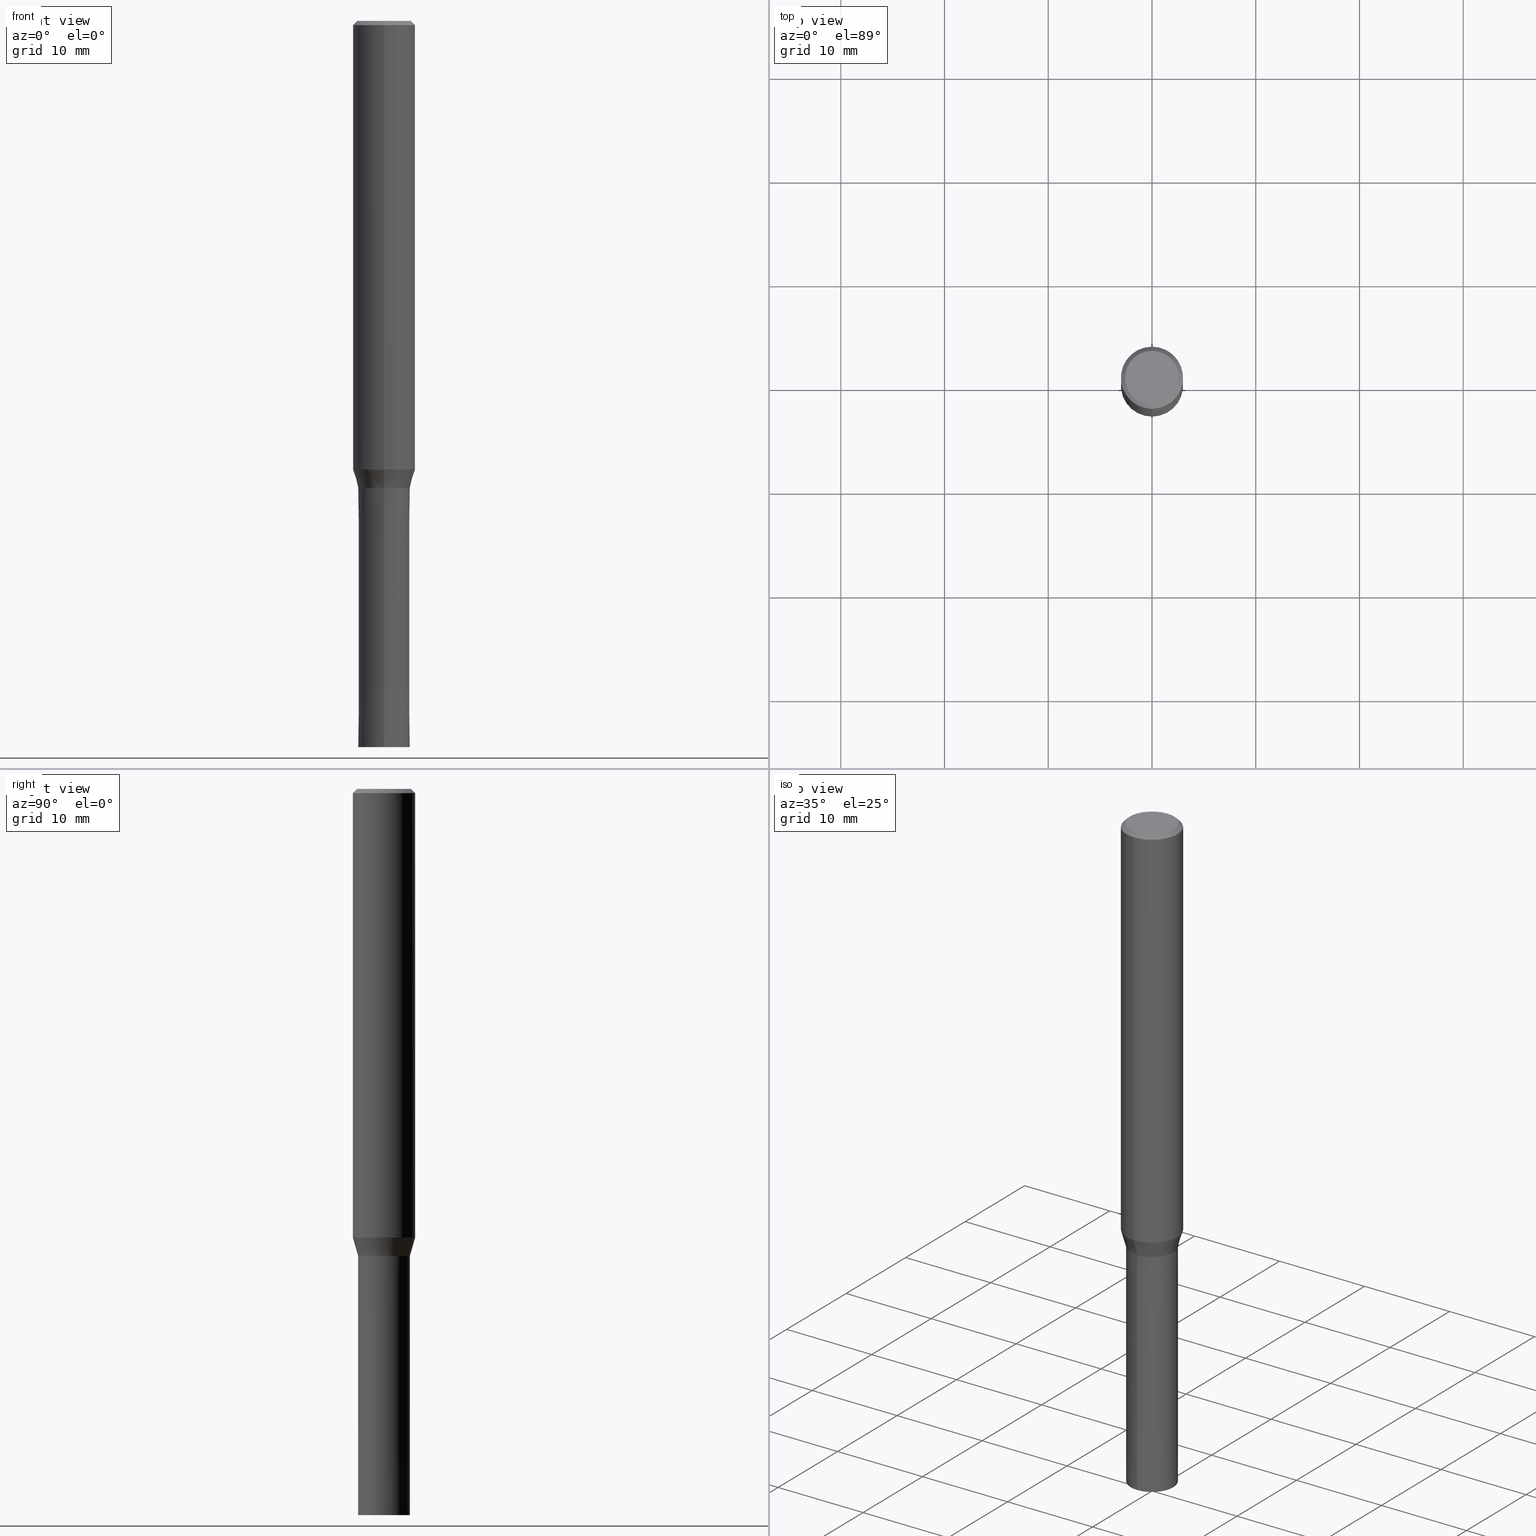
[diagram: canonical four-view strip — front | top / right | iso, engineering-drawing reading convention]
A machine part, canonical four-view strip (front | top / right | iso — engineering-drawing reading convention). The complete STEP part file that produces these views, byte-faithful:
ISO-10303-21;
HEADER;
FILE_DESCRIPTION(('no description'),'unknown implementation level');
FILE_NAME('HMS4050-2500-Huellk.stp','  ',('CIMSOURCE GmbH'),('CADClick - KiM GmbH - www.kimweb.de'),'unknown preprocess','ACIS','unknown authorization');
FILE_SCHEMA(('automotive_design'));
ENDSEC;
DATA;
#1=MECHANICAL_DESIGN_GEOMETRIC_PRESENTATION_REPRESENTATION(' ',(#14,#15,#16,#17,#18,#19,#20,#21,#22,#23,#24,#25,#26,#27,#28,#29,#30,#31,#32,#33,#34,#35,#36,#37,#38,#39,#40,#41,#42,#43,#44,#45,#46,#47,#48,#49,#50,#51,#52,#53,#54,#55,#56,#57,#58,#59,#60,#61,#62,#63,#64),#10);
#2=PRODUCT_DEFINITION_CONTEXT('',#65,'design');
#3=APPLICATION_PROTOCOL_DEFINITION('INTERNATIONAL STANDARD','automotive_design',1994,#65);
#4=PRODUCT_CATEGORY_RELATIONSHIP('NONE','NONE',#66,#67);
#5=SHAPE_DEFINITION_REPRESENTATION(#68,#69);
#6=PRODUCT_DEFINITION_CONTEXT('',#70,'design');
#7=APPLICATION_PROTOCOL_DEFINITION('INTERNATIONAL STANDARD','automotive_design',1994,#70);
#8=PRODUCT_CATEGORY_RELATIONSHIP('NONE','NONE',#71,#72);
#9=SHAPE_DEFINITION_REPRESENTATION(#73,#74);
#10= (GEOMETRIC_REPRESENTATION_CONTEXT(3)GLOBAL_UNCERTAINTY_ASSIGNED_CONTEXT((#77))GLOBAL_UNIT_ASSIGNED_CONTEXT((#79,#80,#81))REPRESENTATION_CONTEXT('NONE','WORKSPACE'));
#14=STYLED_ITEM('',(#83),#84);
#15=STYLED_ITEM('',(#85),#86);
#16=STYLED_ITEM('',(#87),#88);
#17=STYLED_ITEM('',(#89),#90);
#18=STYLED_ITEM('',(#91),#92);
#19=STYLED_ITEM('',(#93),#94);
#20=STYLED_ITEM('',(#95),#96);
#21=STYLED_ITEM('',(#97),#98);
#22=STYLED_ITEM('',(#99),#100);
#23=STYLED_ITEM('',(#101),#102);
#24=STYLED_ITEM('',(#103),#104);
#25=STYLED_ITEM('',(#105),#106);
#26=STYLED_ITEM('',(#107),#108);
#27=STYLED_ITEM('',(#109),#110);
#28=STYLED_ITEM('',(#111),#112);
#29=STYLED_ITEM('',(#113),#114);
#30=STYLED_ITEM('',(#115),#116);
#31=STYLED_ITEM('',(#117),#118);
#32=STYLED_ITEM('',(#119),#120);
#33=STYLED_ITEM('',(#121),#122);
#34=STYLED_ITEM('',(#123),#124);
#35=STYLED_ITEM('',(#125),#126);
#36=STYLED_ITEM('',(#127),#128);
#37=STYLED_ITEM('',(#129),#130);
#38=STYLED_ITEM('',(#131),#132);
#39=STYLED_ITEM('',(#133),#134);
#40=STYLED_ITEM('',(#135),#136);
#41=STYLED_ITEM('',(#137),#138);
#42=STYLED_ITEM('',(#139),#140);
#43=STYLED_ITEM('',(#141),#142);
#44=STYLED_ITEM('',(#143),#144);
#45=STYLED_ITEM('',(#145),#146);
#46=STYLED_ITEM('',(#147),#148);
#47=STYLED_ITEM('',(#149),#150);
#48=STYLED_ITEM('',(#151),#152);
#49=STYLED_ITEM('',(#153),#154);
#50=STYLED_ITEM('',(#155),#156);
#51=STYLED_ITEM('',(#157),#158);
#52=STYLED_ITEM('',(#159),#160);
#53=STYLED_ITEM('',(#161),#162);
#54=STYLED_ITEM('',(#163),#164);
#55=STYLED_ITEM('',(#165),#166);
#56=STYLED_ITEM('',(#167),#168);
#57=STYLED_ITEM('',(#169),#170);
#58=STYLED_ITEM('',(#171),#172);
#59=STYLED_ITEM('',(#173),#174);
#60=STYLED_ITEM('',(#175),#176);
#61=STYLED_ITEM('',(#177),#178);
#62=STYLED_ITEM('',(#179),#180);
#63=STYLED_ITEM('',(#181),#182);
#64=STYLED_ITEM('',(#183),#184);
#65=APPLICATION_CONTEXT(' ');
#66=PRODUCT_CATEGORY('part','NONE');
#67=PRODUCT_RELATED_PRODUCT_CATEGORY('detail',' ',(#185));
#68=PRODUCT_DEFINITION_SHAPE('NONE','NONE',#186);
#69=ADVANCED_BREP_SHAPE_REPRESENTATION('1',(#116,#187),#10);
#70=APPLICATION_CONTEXT(' ');
#71=PRODUCT_CATEGORY('part','NONE');
#72=PRODUCT_RELATED_PRODUCT_CATEGORY('detail',' ',(#188));
#73=PRODUCT_DEFINITION_SHAPE('NONE','NONE',#189);
#74=ADVANCED_BREP_SHAPE_REPRESENTATION('2',(#174,#190),#10);
#77=UNCERTAINTY_MEASURE_WITH_UNIT(LENGTH_MEASURE(1.0E-006),#79,'','');
#79= (CONVERSION_BASED_UNIT('MILLIMETRE',#193)LENGTH_UNIT()NAMED_UNIT(#196));
#80= (NAMED_UNIT(#198)PLANE_ANGLE_UNIT()SI_UNIT($,.RADIAN.));
#81= (NAMED_UNIT(#198)SOLID_ANGLE_UNIT()SI_UNIT($,.STERADIAN.));
#83=PRESENTATION_STYLE_ASSIGNMENT((#204));
#84=EDGE_CURVE('',#102,#178,#205,.T.);
#85=PRESENTATION_STYLE_ASSIGNMENT((#206));
#86=VERTEX_POINT('',#207);
#87=PRESENTATION_STYLE_ASSIGNMENT((#208));
#88=EDGE_CURVE('',#106,#176,#209,.T.);
#89=PRESENTATION_STYLE_ASSIGNMENT((#210));
#90=EDGE_CURVE('',#122,#166,#211,.T.);
#91=PRESENTATION_STYLE_ASSIGNMENT((#212));
#92=ADVANCED_FACE('',(#213),#214,.T.);
#93=PRESENTATION_STYLE_ASSIGNMENT((#215));
#94=VERTEX_POINT('',#216);
#95=PRESENTATION_STYLE_ASSIGNMENT((#217));
#96=EDGE_CURVE('',#118,#102,#218,.T.);
#97=PRESENTATION_STYLE_ASSIGNMENT((#219));
#98=EDGE_CURVE('',#168,#178,#220,.T.);
#99=PRESENTATION_STYLE_ASSIGNMENT((#221));
#100=VERTEX_POINT('',#222);
#101=PRESENTATION_STYLE_ASSIGNMENT((#223));
#102=VERTEX_POINT('',#224);
#103=PRESENTATION_STYLE_ASSIGNMENT((#225));
#104=EDGE_CURVE('',#176,#86,#226,.T.);
#105=PRESENTATION_STYLE_ASSIGNMENT((#227));
#106=VERTEX_POINT('',#228);
#107=PRESENTATION_STYLE_ASSIGNMENT((#229));
#108=EDGE_CURVE('',#86,#176,#230,.T.);
#109=PRESENTATION_STYLE_ASSIGNMENT((#231));
#110=EDGE_CURVE('',#106,#140,#232,.T.);
#111=PRESENTATION_STYLE_ASSIGNMENT((#233));
#112=EDGE_CURVE('',#100,#126,#234,.T.);
#113=PRESENTATION_STYLE_ASSIGNMENT((#235));
#114=EDGE_CURVE('',#86,#140,#236,.T.);
#115=PRESENTATION_STYLE_ASSIGNMENT((#237));
#116=MANIFOLD_SOLID_BREP('1',#238);
#117=PRESENTATION_STYLE_ASSIGNMENT((#239));
#118=VERTEX_POINT('',#240);
#119=PRESENTATION_STYLE_ASSIGNMENT((#241));
#120=ADVANCED_FACE('',(#242),#243,.T.);
#121=PRESENTATION_STYLE_ASSIGNMENT((#244));
#122=VERTEX_POINT('',#245);
#123=PRESENTATION_STYLE_ASSIGNMENT((#246));
#124=ADVANCED_FACE('',(#247),#248,.T.);
#125=PRESENTATION_STYLE_ASSIGNMENT((#249));
#126=VERTEX_POINT('',#250);
#127=PRESENTATION_STYLE_ASSIGNMENT((#251));
#128=EDGE_CURVE('',#94,#126,#252,.T.);
#129=PRESENTATION_STYLE_ASSIGNMENT((#253));
#130=ADVANCED_FACE('',(#254),#255,.T.);
#131=PRESENTATION_STYLE_ASSIGNMENT((#256));
#132=EDGE_CURVE('',#166,#102,#257,.T.);
#133=PRESENTATION_STYLE_ASSIGNMENT((#258));
#134=ADVANCED_FACE('',(#259),#260,.T.);
#135=PRESENTATION_STYLE_ASSIGNMENT((#261));
#136=EDGE_CURVE('',#126,#94,#262,.T.);
#137=PRESENTATION_STYLE_ASSIGNMENT((#263));
#138=EDGE_CURVE('',#140,#106,#264,.T.);
#139=PRESENTATION_STYLE_ASSIGNMENT((#265));
#140=VERTEX_POINT('',#266);
#141=PRESENTATION_STYLE_ASSIGNMENT((#267));
#142=ADVANCED_FACE('',(#268),#269,.T.);
#143=PRESENTATION_STYLE_ASSIGNMENT((#270));
#144=ADVANCED_FACE('',(#271),#272,.T.);
#145=PRESENTATION_STYLE_ASSIGNMENT((#273));
#146=ADVANCED_FACE('',(#274),#275,.T.);
#147=PRESENTATION_STYLE_ASSIGNMENT((#276));
#148=EDGE_CURVE('',#178,#168,#277,.T.);
#149=PRESENTATION_STYLE_ASSIGNMENT((#278));
#150=EDGE_CURVE('',#102,#118,#279,.T.);
#151=PRESENTATION_STYLE_ASSIGNMENT((#280));
#152=EDGE_CURVE('',#118,#122,#281,.T.);
#153=PRESENTATION_STYLE_ASSIGNMENT((#282));
#154=ADVANCED_FACE('',(#283),#284,.T.);
#155=PRESENTATION_STYLE_ASSIGNMENT((#285));
#156=EDGE_CURVE('',#172,#100,#286,.T.);
#157=PRESENTATION_STYLE_ASSIGNMENT((#287));
#158=ADVANCED_FACE('',(#288),#289,.T.);
#159=PRESENTATION_STYLE_ASSIGNMENT((#290));
#160=EDGE_CURVE('',#100,#172,#291,.T.);
#161=PRESENTATION_STYLE_ASSIGNMENT((#292));
#162=ADVANCED_FACE('',(#293,#294),#295,.T.);
#163=PRESENTATION_STYLE_ASSIGNMENT((#296));
#164=ADVANCED_FACE('',(#297),#298,.T.);
#165=PRESENTATION_STYLE_ASSIGNMENT((#299));
#166=VERTEX_POINT('',#300);
#167=PRESENTATION_STYLE_ASSIGNMENT((#301));
#168=VERTEX_POINT('',#302);
#169=PRESENTATION_STYLE_ASSIGNMENT((#303));
#170=EDGE_CURVE('',#166,#122,#304,.T.);
#171=PRESENTATION_STYLE_ASSIGNMENT((#305));
#172=VERTEX_POINT('',#306);
#173=PRESENTATION_STYLE_ASSIGNMENT((#307));
#174=MANIFOLD_SOLID_BREP('2',#308);
#175=PRESENTATION_STYLE_ASSIGNMENT((#309));
#176=VERTEX_POINT('',#310);
#177=PRESENTATION_STYLE_ASSIGNMENT((#311));
#178=VERTEX_POINT('',#312);
#179=PRESENTATION_STYLE_ASSIGNMENT((#313));
#180=EDGE_CURVE('',#168,#118,#314,.T.);
#181=PRESENTATION_STYLE_ASSIGNMENT((#315));
#182=ADVANCED_FACE('',(#316),#317,.T.);
#183=PRESENTATION_STYLE_ASSIGNMENT((#318));
#184=EDGE_CURVE('',#94,#172,#319,.T.);
#185=PRODUCT('1','1','PART-1-DESC',(#320));
#186=PRODUCT_DEFINITION('NONE','NONE',#321,#2);
#187=AXIS2_PLACEMENT_3D('',#322,#323,#324);
#188=PRODUCT('2','2','PART-2-DESC',(#325));
#189=PRODUCT_DEFINITION('NONE','NONE',#326,#6);
#190=AXIS2_PLACEMENT_3D('',#327,#328,#329);
#193=LENGTH_MEASURE_WITH_UNIT(LENGTH_MEASURE(1.0),#330);
#196=DIMENSIONAL_EXPONENTS(1.0,0.0,0.0,0.0,0.0,0.0,0.0);
#198=DIMENSIONAL_EXPONENTS(0.0,0.0,0.0,0.0,0.0,0.0,0.0);
#204=CURVE_STYLE('',#331,POSITIVE_LENGTH_MEASURE(1.0E-006),#332);
#205=LINE('',#333,#334);
#206=POINT_STYLE(' ',#335,POSITIVE_LENGTH_MEASURE(1.0E-006),#336);
#207=CARTESIAN_POINT('',(0.0,2.99995,-43.256));
#208=CURVE_STYLE('',#337,POSITIVE_LENGTH_MEASURE(1.0E-006),#338);
#209=LINE('',#339,#340);
#210=CURVE_STYLE('',#341,POSITIVE_LENGTH_MEASURE(1.0E-006),#342);
#211=CIRCLE('',#343,2.6);
#212=SURFACE_STYLE_USAGE(.BOTH.,#344);
#213=FACE_OUTER_BOUND('',#345,.T.);
#214=CONICAL_SURFACE('',#346,2.49995,3.99999999998711E-006);
#215=POINT_STYLE(' ',#347,POSITIVE_LENGTH_MEASURE(1.0E-006),#348);
#216=CARTESIAN_POINT('',(0.0,2.4999,-45.0));
#217=CURVE_STYLE('',#349,POSITIVE_LENGTH_MEASURE(1.0E-006),#350);
#218=CIRCLE('',#351,3.0);
#219=CURVE_STYLE('',#352,POSITIVE_LENGTH_MEASURE(1.0E-006),#353);
#220=CIRCLE('',#354,3.0);
#221=POINT_STYLE(' ',#355,POSITIVE_LENGTH_MEASURE(1.0E-006),#356);
#222=CARTESIAN_POINT('',(3.06151588455594E-016,-2.5,-70.0));
#223=POINT_STYLE(' ',#357,POSITIVE_LENGTH_MEASURE(1.0E-006),#358);
#224=CARTESIAN_POINT('',(0.0,3.0,-0.399999999999999));
#225=CURVE_STYLE('',#359,POSITIVE_LENGTH_MEASURE(1.0E-006),#360);
#226=CIRCLE('',#361,2.99995);
#227=POINT_STYLE(' ',#362,POSITIVE_LENGTH_MEASURE(1.0E-006),#363);
#228=CARTESIAN_POINT('',(3.06145465423825E-016,-2.49995,-45.0));
#229=CURVE_STYLE('',#364,POSITIVE_LENGTH_MEASURE(1.0E-006),#365);
#230=CIRCLE('',#366,2.99995);
#231=CURVE_STYLE('',#367,POSITIVE_LENGTH_MEASURE(1.0E-006),#368);
#232=CIRCLE('',#369,2.49995);
#233=CURVE_STYLE('',#370,POSITIVE_LENGTH_MEASURE(1.0E-006),#371);
#234=LINE('',#372,#373);
#235=CURVE_STYLE('',#374,POSITIVE_LENGTH_MEASURE(1.0E-006),#375);
#236=LINE('',#376,#377);
#237=SURFACE_STYLE_USAGE(.BOTH.,#378);
#238=CLOSED_SHELL('',(#142,#124,#182,#162,#164,#120,#134,#158,#130));
#239=POINT_STYLE(' ',#379,POSITIVE_LENGTH_MEASURE(1.0E-006),#380);
#240=CARTESIAN_POINT('',(3.67381906146713E-016,-3.0,-0.399999999999999));
#241=SURFACE_STYLE_USAGE(.BOTH.,#381);
#242=FACE_OUTER_BOUND('',#382,.T.);
#243=CONICAL_SURFACE('',#383,2.8,0.78539816339745);
#244=POINT_STYLE(' ',#384,POSITIVE_LENGTH_MEASURE(1.0E-006),#385);
#245=CARTESIAN_POINT('',(3.18397651993818E-016,-2.6,0.0));
#246=SURFACE_STYLE_USAGE(.BOTH.,#386);
#247=FACE_OUTER_BOUND('',#387,.T.);
#248=CYLINDRICAL_SURFACE('',#388,3.0);
#249=POINT_STYLE(' ',#389,POSITIVE_LENGTH_MEASURE(1.0E-006),#390);
#250=CARTESIAN_POINT('',(3.06139342392056E-016,-2.4999,-45.0));
#251=CURVE_STYLE('',#391,POSITIVE_LENGTH_MEASURE(1.0E-006),#392);
#252=CIRCLE('',#393,2.4999);
#253=SURFACE_STYLE_USAGE(.BOTH.,#394);
#254=FACE_OUTER_BOUND('',#395,.T.);
#255=PLANE('',#396);
#256=CURVE_STYLE('',#397,POSITIVE_LENGTH_MEASURE(1.0E-006),#398);
#257=LINE('',#399,#400);
#258=SURFACE_STYLE_USAGE(.BOTH.,#401);
#259=FACE_OUTER_BOUND('',#402,.T.);
#260=CYLINDRICAL_SURFACE('',#403,3.0);
#261=CURVE_STYLE('',#404,POSITIVE_LENGTH_MEASURE(1.0E-006),#405);
#262=CIRCLE('',#406,2.4999);
#263=CURVE_STYLE('',#407,POSITIVE_LENGTH_MEASURE(1.0E-006),#408);
#264=CIRCLE('',#409,2.49995);
#265=POINT_STYLE(' ',#410,POSITIVE_LENGTH_MEASURE(1.0E-006),#411);
#266=CARTESIAN_POINT('',(0.0,2.49995,-45.0));
#267=SURFACE_STYLE_USAGE(.BOTH.,#412);
#268=FACE_OUTER_BOUND('',#413,.T.);
#269=CONICAL_SURFACE('',#414,2.74995,0.279208199033747);
#270=SURFACE_STYLE_USAGE(.BOTH.,#415);
#271=FACE_OUTER_BOUND('',#416,.T.);
#272=PLANE('',#417);
#273=SURFACE_STYLE_USAGE(.BOTH.,#418);
#274=FACE_OUTER_BOUND('',#419,.T.);
#275=CONICAL_SURFACE('',#420,2.49995,3.99999999998711E-006);
#276=CURVE_STYLE('',#421,POSITIVE_LENGTH_MEASURE(1.0E-006),#422);
#277=CIRCLE('',#423,3.0);
#278=CURVE_STYLE('',#424,POSITIVE_LENGTH_MEASURE(1.0E-006),#425);
#279=CIRCLE('',#426,3.0);
#280=CURVE_STYLE('',#427,POSITIVE_LENGTH_MEASURE(1.0E-006),#428);
#281=LINE('',#429,#430);
#282=SURFACE_STYLE_USAGE(.BOTH.,#431);
#283=FACE_OUTER_BOUND('',#432,.T.);
#284=PLANE('',#433);
#285=CURVE_STYLE('',#434,POSITIVE_LENGTH_MEASURE(1.0E-006),#435);
#286=CIRCLE('',#436,2.5);
#287=SURFACE_STYLE_USAGE(.BOTH.,#437);
#288=FACE_OUTER_BOUND('',#438,.T.);
#289=CONICAL_SURFACE('',#439,2.74995,0.279208199033747);
#290=CURVE_STYLE('',#440,POSITIVE_LENGTH_MEASURE(1.0E-006),#441);
#291=CIRCLE('',#442,2.5);
#292=SURFACE_STYLE_USAGE(.BOTH.,#443);
#293=FACE_OUTER_BOUND('',#444,.T.);
#294=FACE_BOUND('',#445,.T.);
#295=PLANE('',#446);
#296=SURFACE_STYLE_USAGE(.BOTH.,#447);
#297=FACE_OUTER_BOUND('',#448,.T.);
#298=PLANE('',#449);
#299=POINT_STYLE(' ',#450,POSITIVE_LENGTH_MEASURE(1.0E-006),#451);
#300=CARTESIAN_POINT('',(0.0,2.6,0.0));
#301=POINT_STYLE(' ',#452,POSITIVE_LENGTH_MEASURE(1.0E-006),#453);
#302=CARTESIAN_POINT('',(3.67381906146713E-016,-3.0,-43.256));
#303=CURVE_STYLE('',#454,POSITIVE_LENGTH_MEASURE(1.0E-006),#455);
#304=CIRCLE('',#456,2.6);
#305=POINT_STYLE(' ',#457,POSITIVE_LENGTH_MEASURE(1.0E-006),#458);
#306=CARTESIAN_POINT('',(0.0,2.5,-70.0));
#307=SURFACE_STYLE_USAGE(.BOTH.,#459);
#308=CLOSED_SHELL('',(#146,#144,#92,#154));
#309=POINT_STYLE(' ',#460,POSITIVE_LENGTH_MEASURE(1.0E-006),#461);
#310=CARTESIAN_POINT('',(3.67375783114944E-016,-2.99995,-43.256));
#311=POINT_STYLE(' ',#462,POSITIVE_LENGTH_MEASURE(1.0E-006),#463);
#312=CARTESIAN_POINT('',(0.0,3.0,-43.256));
#313=CURVE_STYLE('',#464,POSITIVE_LENGTH_MEASURE(1.0E-006),#465);
#314=LINE('',#466,#467);
#315=SURFACE_STYLE_USAGE(.BOTH.,#468);
#316=FACE_OUTER_BOUND('',#469,.T.);
#317=CONICAL_SURFACE('',#470,2.8,0.78539816339745);
#318=CURVE_STYLE('',#471,POSITIVE_LENGTH_MEASURE(1.0E-006),#472);
#319=LINE('',#473,#474);
#320=PRODUCT_CONTEXT('',#65,'mechanical');
#321=PRODUCT_DEFINITION_FORMATION_WITH_SPECIFIED_SOURCE(' ','NONE',#185,.NOT_KNOWN.);
#322=CARTESIAN_POINT('',(0.0,0.0,0.0));
#323=DIRECTION('',(0.0,0.0,1.0));
#324=DIRECTION('',(1.0,0.0,0.0));
#325=PRODUCT_CONTEXT('',#70,'mechanical');
#326=PRODUCT_DEFINITION_FORMATION_WITH_SPECIFIED_SOURCE(' ','NONE',#188,.NOT_KNOWN.);
#327=CARTESIAN_POINT('',(0.0,0.0,0.0));
#328=DIRECTION('',(0.0,0.0,1.0));
#329=DIRECTION('',(1.0,0.0,0.0));
#330= (NAMED_UNIT(#196)LENGTH_UNIT()SI_UNIT(.MILLI.,.METRE.));
#331=DRAUGHTING_PRE_DEFINED_CURVE_FONT('continuous');
#332=COLOUR_RGB('',0.498039215803146,0.498039215803146,0.498039215803146);
#333=CARTESIAN_POINT('',(-3.67381906146713E-016,3.0,-21.828));
#334=VECTOR('',#476,1.0);
#335=PRE_DEFINED_MARKER('');
#336=COLOUR_RGB('',0.498039215803146,0.498039215803146,0.498039215803146);
#337=DRAUGHTING_PRE_DEFINED_CURVE_FONT('continuous');
#338=COLOUR_RGB('',0.498039215803146,0.498039215803146,0.498039215803146);
#339=CARTESIAN_POINT('',(3.36760624269385E-016,-2.74995,-44.128));
#340=VECTOR('',#477,1.0);
#341=DRAUGHTING_PRE_DEFINED_CURVE_FONT('continuous');
#342=COLOUR_RGB('',0.498039215803146,0.498039215803146,0.498039215803146);
#343=AXIS2_PLACEMENT_3D('',#478,#479,#480);
#344=SURFACE_SIDE_STYLE('',(#481));
#345=EDGE_LOOP('',(#482,#483,#484,#485));
#346=AXIS2_PLACEMENT_3D('',#486,#487,#488);
#347=PRE_DEFINED_MARKER('');
#348=COLOUR_RGB('',0.800000011920929,0.800000011920929,0.800000011920929);
#349=DRAUGHTING_PRE_DEFINED_CURVE_FONT('continuous');
#350=COLOUR_RGB('',0.498039215803146,0.498039215803146,0.498039215803146);
#351=AXIS2_PLACEMENT_3D('',#489,#490,#491);
#352=DRAUGHTING_PRE_DEFINED_CURVE_FONT('continuous');
#353=COLOUR_RGB('',0.498039215803146,0.498039215803146,0.498039215803146);
#354=AXIS2_PLACEMENT_3D('',#492,#493,#494);
#355=PRE_DEFINED_MARKER('');
#356=COLOUR_RGB('',0.800000011920929,0.800000011920929,0.800000011920929);
#357=PRE_DEFINED_MARKER('');
#358=COLOUR_RGB('',0.498039215803146,0.498039215803146,0.498039215803146);
#359=DRAUGHTING_PRE_DEFINED_CURVE_FONT('continuous');
#360=COLOUR_RGB('',0.498039215803146,0.498039215803146,0.498039215803146);
#361=AXIS2_PLACEMENT_3D('',#495,#496,#497);
#362=PRE_DEFINED_MARKER('');
#363=COLOUR_RGB('',0.498039215803146,0.498039215803146,0.498039215803146);
#364=DRAUGHTING_PRE_DEFINED_CURVE_FONT('continuous');
#365=COLOUR_RGB('',0.498039215803146,0.498039215803146,0.498039215803146);
#366=AXIS2_PLACEMENT_3D('',#498,#499,#500);
#367=DRAUGHTING_PRE_DEFINED_CURVE_FONT('continuous');
#368=COLOUR_RGB('',0.498039215803146,0.498039215803146,0.498039215803146);
#369=AXIS2_PLACEMENT_3D('',#501,#502,#503);
#370=DRAUGHTING_PRE_DEFINED_CURVE_FONT('continuous');
#371=COLOUR_RGB('',0.800000011920929,0.800000011920929,0.800000011920929);
#372=CARTESIAN_POINT('',(3.06145465423825E-016,-2.49995,-57.5));
#373=VECTOR('',#504,1.0);
#374=DRAUGHTING_PRE_DEFINED_CURVE_FONT('continuous');
#375=COLOUR_RGB('',0.498039215803146,0.498039215803146,0.498039215803146);
#376=CARTESIAN_POINT('',(-3.36760624269385E-016,2.74995,-44.128));
#377=VECTOR('',#505,1.0);
#378=SURFACE_SIDE_STYLE('',(#506));
#379=PRE_DEFINED_MARKER('');
#380=COLOUR_RGB('',0.498039215803146,0.498039215803146,0.498039215803146);
#381=SURFACE_SIDE_STYLE('',(#507));
#382=EDGE_LOOP('',(#508,#509,#510,#511));
#383=AXIS2_PLACEMENT_3D('',#512,#513,#514);
#384=PRE_DEFINED_MARKER('');
#385=COLOUR_RGB('',0.498039215803146,0.498039215803146,0.498039215803146);
#386=SURFACE_SIDE_STYLE('',(#515));
#387=EDGE_LOOP('',(#516,#517,#518,#519));
#388=AXIS2_PLACEMENT_3D('',#520,#521,#522);
#389=PRE_DEFINED_MARKER('');
#390=COLOUR_RGB('',0.800000011920929,0.800000011920929,0.800000011920929);
#391=DRAUGHTING_PRE_DEFINED_CURVE_FONT('continuous');
#392=COLOUR_RGB('',0.800000011920929,0.800000011920929,0.800000011920929);
#393=AXIS2_PLACEMENT_3D('',#523,#524,#525);
#394=SURFACE_SIDE_STYLE('',(#526));
#395=EDGE_LOOP('',(#527,#528));
#396=AXIS2_PLACEMENT_3D('',#529,#530,#531);
#397=DRAUGHTING_PRE_DEFINED_CURVE_FONT('continuous');
#398=COLOUR_RGB('',0.498039215803146,0.498039215803146,0.498039215803146);
#399=CARTESIAN_POINT('',(-3.42889779070266E-016,2.8,-0.200000000000003));
#400=VECTOR('',#532,1.0);
#401=SURFACE_SIDE_STYLE('',(#533));
#402=EDGE_LOOP('',(#534,#535,#536,#537));
#403=AXIS2_PLACEMENT_3D('',#538,#539,#540);
#404=DRAUGHTING_PRE_DEFINED_CURVE_FONT('continuous');
#405=COLOUR_RGB('',0.800000011920929,0.800000011920929,0.800000011920929);
#406=AXIS2_PLACEMENT_3D('',#541,#542,#543);
#407=DRAUGHTING_PRE_DEFINED_CURVE_FONT('continuous');
#408=COLOUR_RGB('',0.498039215803146,0.498039215803146,0.498039215803146);
#409=AXIS2_PLACEMENT_3D('',#544,#545,#546);
#410=PRE_DEFINED_MARKER('');
#411=COLOUR_RGB('',0.498039215803146,0.498039215803146,0.498039215803146);
#412=SURFACE_SIDE_STYLE('',(#547));
#413=EDGE_LOOP('',(#548,#549,#550,#551));
#414=AXIS2_PLACEMENT_3D('',#552,#553,#554);
#415=SURFACE_SIDE_STYLE('',(#555));
#416=EDGE_LOOP('',(#556,#557));
#417=AXIS2_PLACEMENT_3D('',#558,#559,#560);
#418=SURFACE_SIDE_STYLE('',(#561));
#419=EDGE_LOOP('',(#562,#563,#564,#565));
#420=AXIS2_PLACEMENT_3D('',#566,#567,#568);
#421=DRAUGHTING_PRE_DEFINED_CURVE_FONT('continuous');
#422=COLOUR_RGB('',0.498039215803146,0.498039215803146,0.498039215803146);
#423=AXIS2_PLACEMENT_3D('',#569,#570,#571);
#424=DRAUGHTING_PRE_DEFINED_CURVE_FONT('continuous');
#425=COLOUR_RGB('',0.498039215803146,0.498039215803146,0.498039215803146);
#426=AXIS2_PLACEMENT_3D('',#572,#573,#574);
#427=DRAUGHTING_PRE_DEFINED_CURVE_FONT('continuous');
#428=COLOUR_RGB('',0.498039215803146,0.498039215803146,0.498039215803146);
#429=CARTESIAN_POINT('',(3.42889779070266E-016,-2.8,-0.200000000000003));
#430=VECTOR('',#575,1.0);
#431=SURFACE_SIDE_STYLE('',(#576));
#432=EDGE_LOOP('',(#577,#578));
#433=AXIS2_PLACEMENT_3D('',#579,#580,#581);
#434=DRAUGHTING_PRE_DEFINED_CURVE_FONT('continuous');
#435=COLOUR_RGB('',0.800000011920929,0.800000011920929,0.800000011920929);
#436=AXIS2_PLACEMENT_3D('',#582,#583,#584);
#437=SURFACE_SIDE_STYLE('',(#585));
#438=EDGE_LOOP('',(#586,#587,#588,#589));
#439=AXIS2_PLACEMENT_3D('',#590,#591,#592);
#440=DRAUGHTING_PRE_DEFINED_CURVE_FONT('continuous');
#441=COLOUR_RGB('',0.800000011920929,0.800000011920929,0.800000011920929);
#442=AXIS2_PLACEMENT_3D('',#593,#594,#595);
#443=SURFACE_SIDE_STYLE('',(#596));
#444=EDGE_LOOP('',(#597,#598));
#445=EDGE_LOOP('',(#599,#600));
#446=AXIS2_PLACEMENT_3D('',#601,#602,#603);
#447=SURFACE_SIDE_STYLE('',(#604));
#448=EDGE_LOOP('',(#605,#606));
#449=AXIS2_PLACEMENT_3D('',#607,#608,#609);
#450=PRE_DEFINED_MARKER('');
#451=COLOUR_RGB('',0.498039215803146,0.498039215803146,0.498039215803146);
#452=PRE_DEFINED_MARKER('');
#453=COLOUR_RGB('',0.498039215803146,0.498039215803146,0.498039215803146);
#454=DRAUGHTING_PRE_DEFINED_CURVE_FONT('continuous');
#455=COLOUR_RGB('',0.498039215803146,0.498039215803146,0.498039215803146);
#456=AXIS2_PLACEMENT_3D('',#610,#611,#612);
#457=PRE_DEFINED_MARKER('');
#458=COLOUR_RGB('',0.800000011920929,0.800000011920929,0.800000011920929);
#459=SURFACE_SIDE_STYLE('',(#613));
#460=PRE_DEFINED_MARKER('');
#461=COLOUR_RGB('',0.498039215803146,0.498039215803146,0.498039215803146);
#462=PRE_DEFINED_MARKER('');
#463=COLOUR_RGB('',0.498039215803146,0.498039215803146,0.498039215803146);
#464=DRAUGHTING_PRE_DEFINED_CURVE_FONT('continuous');
#465=COLOUR_RGB('',0.498039215803146,0.498039215803146,0.498039215803146);
#466=CARTESIAN_POINT('',(3.67381906146713E-016,-3.0,-21.828));
#467=VECTOR('',#614,1.0);
#468=SURFACE_SIDE_STYLE('',(#615));
#469=EDGE_LOOP('',(#616,#617,#618,#619));
#470=AXIS2_PLACEMENT_3D('',#620,#621,#622);
#471=DRAUGHTING_PRE_DEFINED_CURVE_FONT('continuous');
#472=COLOUR_RGB('',0.800000011920929,0.800000011920929,0.800000011920929);
#473=CARTESIAN_POINT('',(-3.06145465423825E-016,2.49995,-57.5));
#474=VECTOR('',#623,1.0);
#476=DIRECTION('',(0.0,0.0,-1.0));
#477=DIRECTION('',(3.37494895041124E-017,-0.275594597388538,0.961273955691222));
#478=CARTESIAN_POINT('',(0.0,0.0,0.0));
#479=DIRECTION('',(0.0,0.0,-1.0));
#480=DIRECTION('',(0.0,1.0,0.0));
#481=SURFACE_STYLE_FILL_AREA(#624);
#482=ORIENTED_EDGE('',*,*,#184,.T.);
#483=ORIENTED_EDGE('',*,*,#160,.F.);
#484=ORIENTED_EDGE('',*,*,#112,.T.);
#485=ORIENTED_EDGE('',*,*,#136,.T.);
#486=CARTESIAN_POINT('',(0.0,0.0,-57.5));
#487=DIRECTION('',(0.0,-0.0,-1.0));
#488=DIRECTION('',(0.0,1.0,0.0));
#489=CARTESIAN_POINT('',(0.0,0.0,-0.399999999999999));
#490=DIRECTION('',(0.0,0.0,-1.0));
#491=DIRECTION('',(0.0,1.0,0.0));
#492=CARTESIAN_POINT('',(0.0,0.0,-43.256));
#493=DIRECTION('',(0.0,0.0,-1.0));
#494=DIRECTION('',(0.0,1.0,0.0));
#495=CARTESIAN_POINT('',(0.0,0.0,-43.256));
#496=DIRECTION('',(0.0,0.0,-1.0));
#497=DIRECTION('',(0.0,1.0,0.0));
#498=CARTESIAN_POINT('',(0.0,0.0,-43.256));
#499=DIRECTION('',(0.0,0.0,-1.0));
#500=DIRECTION('',(0.0,1.0,0.0));
#501=CARTESIAN_POINT('',(0.0,0.0,-45.0));
#502=DIRECTION('',(0.0,0.0,-1.0));
#503=DIRECTION('',(0.0,1.0,0.0));
#504=DIRECTION('',(-4.89842541526066E-022,3.99999999997644E-006,0.999999999992));
#505=DIRECTION('',(3.37494895041124E-017,-0.275594597388538,-0.961273955691222));
#506=SURFACE_STYLE_FILL_AREA(#625);
#507=SURFACE_STYLE_FILL_AREA(#626);
#508=ORIENTED_EDGE('',*,*,#132,.T.);
#509=ORIENTED_EDGE('',*,*,#96,.F.);
#510=ORIENTED_EDGE('',*,*,#152,.T.);
#511=ORIENTED_EDGE('',*,*,#90,.T.);
#512=CARTESIAN_POINT('',(0.0,0.0,-0.200000000000003));
#513=DIRECTION('',(0.0,-0.0,-1.0));
#514=DIRECTION('',(0.0,1.0,0.0));
#515=SURFACE_STYLE_FILL_AREA(#627);
#516=ORIENTED_EDGE('',*,*,#84,.F.);
#517=ORIENTED_EDGE('',*,*,#150,.T.);
#518=ORIENTED_EDGE('',*,*,#180,.F.);
#519=ORIENTED_EDGE('',*,*,#148,.F.);
#520=CARTESIAN_POINT('',(0.0,0.0,-21.828));
#521=DIRECTION('',(-0.0,-0.0,1.0));
#522=DIRECTION('',(0.0,1.0,0.0));
#523=CARTESIAN_POINT('',(0.0,0.0,-45.0));
#524=DIRECTION('',(0.0,0.0,-1.0));
#525=DIRECTION('',(0.0,1.0,0.0));
#526=SURFACE_STYLE_FILL_AREA(#628);
#527=ORIENTED_EDGE('',*,*,#138,.T.);
#528=ORIENTED_EDGE('',*,*,#110,.T.);
#529=CARTESIAN_POINT('',(0.0,1.249975,-45.0));
#530=DIRECTION('',(0.0,0.0,-1.0));
#531=DIRECTION('',(0.0,1.0,0.0));
#532=DIRECTION('',(-8.65927457071937E-017,0.707106781186549,-0.707106781186546));
#533=SURFACE_STYLE_FILL_AREA(#629);
#534=ORIENTED_EDGE('',*,*,#84,.T.);
#535=ORIENTED_EDGE('',*,*,#98,.F.);
#536=ORIENTED_EDGE('',*,*,#180,.T.);
#537=ORIENTED_EDGE('',*,*,#96,.T.);
#538=CARTESIAN_POINT('',(0.0,0.0,-21.828));
#539=DIRECTION('',(-0.0,-0.0,1.0));
#540=DIRECTION('',(0.0,1.0,0.0));
#541=CARTESIAN_POINT('',(0.0,0.0,-45.0));
#542=DIRECTION('',(0.0,0.0,-1.0));
#543=DIRECTION('',(0.0,1.0,0.0));
#544=CARTESIAN_POINT('',(0.0,0.0,-45.0));
#545=DIRECTION('',(0.0,0.0,-1.0));
#546=DIRECTION('',(0.0,1.0,0.0));
#547=SURFACE_STYLE_FILL_AREA(#630);
#548=ORIENTED_EDGE('',*,*,#114,.F.);
#549=ORIENTED_EDGE('',*,*,#108,.T.);
#550=ORIENTED_EDGE('',*,*,#88,.F.);
#551=ORIENTED_EDGE('',*,*,#138,.F.);
#552=CARTESIAN_POINT('',(0.0,0.0,-44.128));
#553=DIRECTION('',(-0.0,-0.0,1.0));
#554=DIRECTION('',(0.0,1.0,0.0));
#555=SURFACE_STYLE_FILL_AREA(#631);
#556=ORIENTED_EDGE('',*,*,#128,.F.);
#557=ORIENTED_EDGE('',*,*,#136,.F.);
#558=CARTESIAN_POINT('',(0.0,1.24995,-45.0));
#559=DIRECTION('',(-0.0,0.0,1.0));
#560=DIRECTION('',(0.0,-1.0,0.0));
#561=SURFACE_STYLE_FILL_AREA(#632);
#562=ORIENTED_EDGE('',*,*,#184,.F.);
#563=ORIENTED_EDGE('',*,*,#128,.T.);
#564=ORIENTED_EDGE('',*,*,#112,.F.);
#565=ORIENTED_EDGE('',*,*,#156,.F.);
#566=CARTESIAN_POINT('',(0.0,0.0,-57.5));
#567=DIRECTION('',(0.0,-0.0,-1.0));
#568=DIRECTION('',(0.0,1.0,0.0));
#569=CARTESIAN_POINT('',(0.0,0.0,-43.256));
#570=DIRECTION('',(0.0,0.0,-1.0));
#571=DIRECTION('',(0.0,1.0,0.0));
#572=CARTESIAN_POINT('',(0.0,0.0,-0.399999999999999));
#573=DIRECTION('',(0.0,0.0,-1.0));
#574=DIRECTION('',(0.0,1.0,0.0));
#575=DIRECTION('',(-8.65927457071937E-017,0.707106781186549,0.707106781186546));
#576=SURFACE_STYLE_FILL_AREA(#633);
#577=ORIENTED_EDGE('',*,*,#156,.T.);
#578=ORIENTED_EDGE('',*,*,#160,.T.);
#579=CARTESIAN_POINT('',(0.0,1.2475,-70.0));
#580=DIRECTION('',(0.0,0.0,-1.0));
#581=DIRECTION('',(0.0,1.0,0.0));
#582=CARTESIAN_POINT('',(0.0,0.0,-70.0));
#583=DIRECTION('',(0.0,0.0,-1.0));
#584=DIRECTION('',(0.0,1.0,0.0));
#585=SURFACE_STYLE_FILL_AREA(#634);
#586=ORIENTED_EDGE('',*,*,#114,.T.);
#587=ORIENTED_EDGE('',*,*,#110,.F.);
#588=ORIENTED_EDGE('',*,*,#88,.T.);
#589=ORIENTED_EDGE('',*,*,#104,.T.);
#590=CARTESIAN_POINT('',(0.0,0.0,-44.128));
#591=DIRECTION('',(-0.0,-0.0,1.0));
#592=DIRECTION('',(0.0,1.0,0.0));
#593=CARTESIAN_POINT('',(0.0,0.0,-70.0));
#594=DIRECTION('',(0.0,0.0,-1.0));
#595=DIRECTION('',(0.0,1.0,0.0));
#596=SURFACE_STYLE_FILL_AREA(#635);
#597=ORIENTED_EDGE('',*,*,#148,.T.);
#598=ORIENTED_EDGE('',*,*,#98,.T.);
#599=ORIENTED_EDGE('',*,*,#108,.F.);
#600=ORIENTED_EDGE('',*,*,#104,.F.);
#601=CARTESIAN_POINT('',(0.0,1.5,-43.256));
#602=DIRECTION('',(0.0,0.0,-1.0));
#603=DIRECTION('',(0.0,1.0,0.0));
#604=SURFACE_STYLE_FILL_AREA(#636);
#605=ORIENTED_EDGE('',*,*,#170,.F.);
#606=ORIENTED_EDGE('',*,*,#90,.F.);
#607=CARTESIAN_POINT('',(0.0,1.3,0.0));
#608=DIRECTION('',(-0.0,0.0,1.0));
#609=DIRECTION('',(0.0,-1.0,0.0));
#610=CARTESIAN_POINT('',(0.0,0.0,0.0));
#611=DIRECTION('',(0.0,0.0,-1.0));
#612=DIRECTION('',(0.0,1.0,0.0));
#613=SURFACE_STYLE_FILL_AREA(#637);
#614=DIRECTION('',(-0.0,-0.0,1.0));
#615=SURFACE_STYLE_FILL_AREA(#638);
#616=ORIENTED_EDGE('',*,*,#132,.F.);
#617=ORIENTED_EDGE('',*,*,#170,.T.);
#618=ORIENTED_EDGE('',*,*,#152,.F.);
#619=ORIENTED_EDGE('',*,*,#150,.F.);
#620=CARTESIAN_POINT('',(0.0,0.0,-0.200000000000003));
#621=DIRECTION('',(0.0,-0.0,-1.0));
#622=DIRECTION('',(0.0,1.0,0.0));
#623=DIRECTION('',(-4.89842541526066E-022,3.99999999997644E-006,-0.999999999992));
#624=FILL_AREA_STYLE('',(#639));
#625=FILL_AREA_STYLE('',(#640));
#626=FILL_AREA_STYLE('',(#641));
#627=FILL_AREA_STYLE('',(#642));
#628=FILL_AREA_STYLE('',(#643));
#629=FILL_AREA_STYLE('',(#644));
#630=FILL_AREA_STYLE('',(#645));
#631=FILL_AREA_STYLE('',(#646));
#632=FILL_AREA_STYLE('',(#647));
#633=FILL_AREA_STYLE('',(#648));
#634=FILL_AREA_STYLE('',(#649));
#635=FILL_AREA_STYLE('',(#650));
#636=FILL_AREA_STYLE('',(#651));
#637=FILL_AREA_STYLE('',(#652));
#638=FILL_AREA_STYLE('',(#653));
#639=FILL_AREA_STYLE_COLOUR('',#654);
#640=FILL_AREA_STYLE_COLOUR('',#655);
#641=FILL_AREA_STYLE_COLOUR('',#656);
#642=FILL_AREA_STYLE_COLOUR('',#657);
#643=FILL_AREA_STYLE_COLOUR('',#658);
#644=FILL_AREA_STYLE_COLOUR('',#659);
#645=FILL_AREA_STYLE_COLOUR('',#660);
#646=FILL_AREA_STYLE_COLOUR('',#661);
#647=FILL_AREA_STYLE_COLOUR('',#662);
#648=FILL_AREA_STYLE_COLOUR('',#663);
#649=FILL_AREA_STYLE_COLOUR('',#664);
#650=FILL_AREA_STYLE_COLOUR('',#665);
#651=FILL_AREA_STYLE_COLOUR('',#666);
#652=FILL_AREA_STYLE_COLOUR('',#667);
#653=FILL_AREA_STYLE_COLOUR('',#668);
#654=COLOUR_RGB('',0.800000011920929,0.800000011920929,0.800000011920929);
#655=COLOUR_RGB('',0.498039215803146,0.498039215803146,0.498039215803146);
#656=COLOUR_RGB('',0.498039215803146,0.498039215803146,0.498039215803146);
#657=COLOUR_RGB('',0.498039215803146,0.498039215803146,0.498039215803146);
#658=COLOUR_RGB('',0.498039215803146,0.498039215803146,0.498039215803146);
#659=COLOUR_RGB('',0.498039215803146,0.498039215803146,0.498039215803146);
#660=COLOUR_RGB('',0.498039215803146,0.498039215803146,0.498039215803146);
#661=COLOUR_RGB('',0.800000011920929,0.800000011920929,0.800000011920929);
#662=COLOUR_RGB('',0.800000011920929,0.800000011920929,0.800000011920929);
#663=COLOUR_RGB('',0.800000011920929,0.800000011920929,0.800000011920929);
#664=COLOUR_RGB('',0.498039215803146,0.498039215803146,0.498039215803146);
#665=COLOUR_RGB('',0.498039215803146,0.498039215803146,0.498039215803146);
#666=COLOUR_RGB('',0.498039215803146,0.498039215803146,0.498039215803146);
#667=COLOUR_RGB('',0.800000011920929,0.800000011920929,0.800000011920929);
#668=COLOUR_RGB('',0.498039215803146,0.498039215803146,0.498039215803146);
#669=AXIS2_PLACEMENT_3D('PCS',#670,#671,#672);
#670=CARTESIAN_POINT('',(0.0,0.0,0.0));
#671=DIRECTION('',(0.0,0.0,1.0));
#672=DIRECTION('',(1.0,0.0,0.0));
#673=AXIS2_PLACEMENT_3D('CIP',#674,#675,#676);
#674=CARTESIAN_POINT('',(0.0,0.0,-70.0));
#675=DIRECTION('',(0.0,0.0,1.0));
#676=DIRECTION('',(1.0,0.0,0.0));
#677=AXIS2_PLACEMENT_3D('CRP',#678,#679,#680);
#678=CARTESIAN_POINT('',(-2.5,0.0,-70.0));
#679=DIRECTION('',(0.0,0.0,1.0));
#680=DIRECTION('',(1.0,0.0,0.0));
#681=AXIS2_PLACEMENT_3D('MCS',#682,#683,#684);
#682=CARTESIAN_POINT('',(0.0,0.0,-43.256));
#683=DIRECTION('',(0.0,0.0,1.0));
#684=DIRECTION('',(1.0,0.0,0.0));
#685=CONSTRUCTIVE_GEOMETRY_REPRESENTATION_RELATIONSHIP('coordinate systems',$,#69,#686);
#686=CONSTRUCTIVE_GEOMETRY_REPRESENTATION('coordinate systems',(#669,#673,#677,#681),#10);
ENDSEC;
END-ISO-10303-21;
